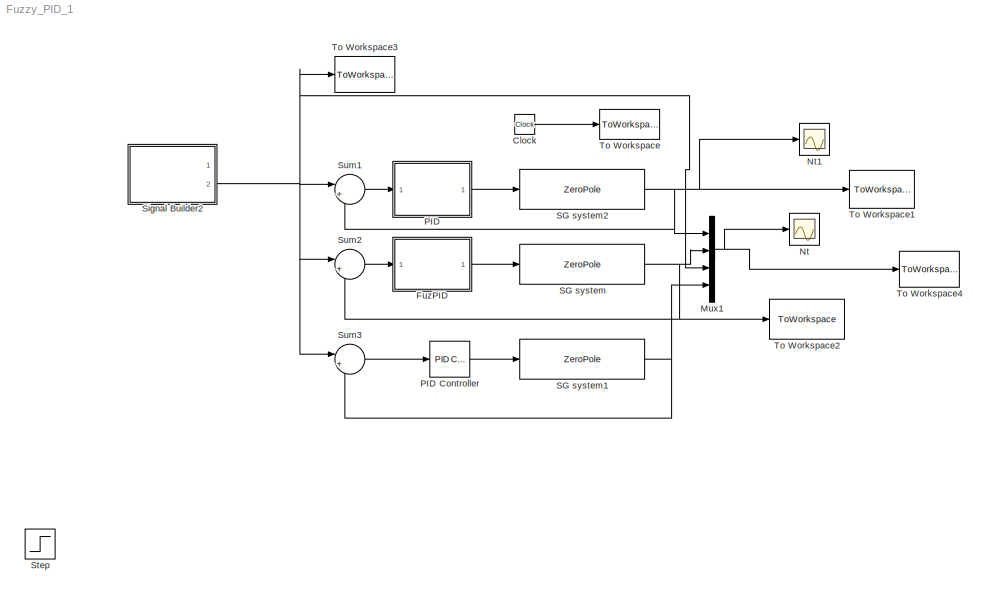
MODEL Fuzzy_PID_1
KIND model
BLOCK [Clock] Clock
  SID = 1
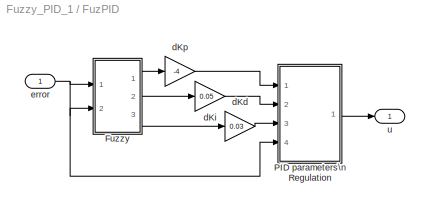
BLOCK [SubSystem] FuzPID
  Ports = [1, 1]
  RequestExecContextInheritance = off
  SID = 2
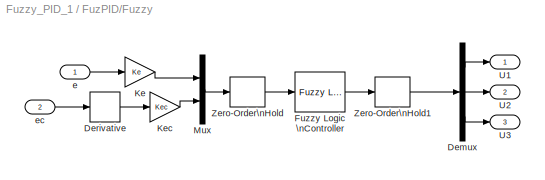
BLOCK [SubSystem] FuzPID/Fuzzy
  Ports = [2, 3]
  RequestExecContextInheritance = off
  SID = 4
BLOCK [Demux] FuzPID/Fuzzy/Demux
  DisplayOption = bar
  Outputs = 3
  Ports = [1, 3]
  SID = 7
BLOCK [Derivative] FuzPID/Fuzzy/Derivative
  SID = 8
BLOCK [Reference] FuzPID/Fuzzy/Fuzzy Logic \nController  REF=fuzblock/Fuzzy Logic \nController  (lib defined in mdl_858b3b3e7478)
  Ports = [1, 1]
  SID = 9
  SourceBlock = fuzblock/Fuzzy Logic \nController
  SourceType = FIS
  fis = fuzzyPID
BLOCK [Gain] FuzPID/Fuzzy/Ke
  Gain = Ke
  OutDataTypeStr = Inherit: Inherit via internal rule
  ParamDataTypeStr = Inherit: Inherit via internal rule
  SID = 10
  SaturateOnIntegerOverflow = off
BLOCK [Gain] FuzPID/Fuzzy/Kec
  Gain = Kec
  OutDataTypeStr = Inherit: Inherit via internal rule
  ParamDataTypeStr = Inherit: Inherit via internal rule
  SID = 11
  SaturateOnIntegerOverflow = off
BLOCK [Mux] FuzPID/Fuzzy/Mux
  DisplayOption = bar
  Inputs = 2
  Ports = [2, 1]
  SID = 12
BLOCK [Outport] FuzPID/Fuzzy/U1
  IconDisplay = Port number
  SID = 14
BLOCK [Outport] FuzPID/Fuzzy/U2
  IconDisplay = Port number
  Port = 2
  SID = 15
BLOCK [Outport] FuzPID/Fuzzy/U3
  IconDisplay = Port number
  Port = 3
  SID = 16
BLOCK [ZeroOrderHold] FuzPID/Fuzzy/Zero-Order\nHold
  SID = 13
  SampleTime = 0.005
BLOCK [ZeroOrderHold] FuzPID/Fuzzy/Zero-Order\nHold1
  SID = 70
  SampleTime = 0.005
BLOCK [Inport] FuzPID/Fuzzy/e
  IconDisplay = Port number
  SID = 5
BLOCK [Inport] FuzPID/Fuzzy/ec
  IconDisplay = Port number
  Port = 2
  SID = 6
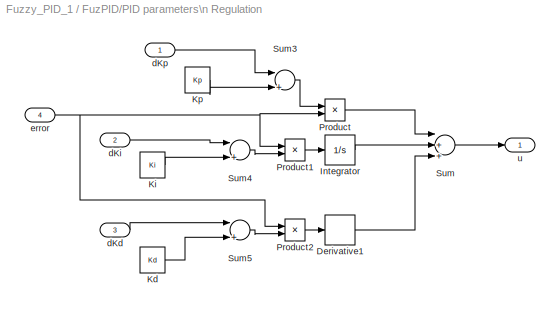
BLOCK [SubSystem] FuzPID/PID parameters\n Regulation
  Ports = [4, 1]
  RequestExecContextInheritance = off
  SID = 17
BLOCK [Derivative] FuzPID/PID parameters\n Regulation/Derivative1
  SID = 22
BLOCK [Integrator] FuzPID/PID parameters\n Regulation/Integrator
  Ports = [1, 1]
  SID = 23
BLOCK [Constant] FuzPID/PID parameters\n Regulation/Kd
  SID = 24
  Value = Kd
BLOCK [Constant] FuzPID/PID parameters\n Regulation/Ki
  SID = 25
  Value = Ki
BLOCK [Constant] FuzPID/PID parameters\n Regulation/Kp
  SID = 26
  Value = Kp
BLOCK [Product] FuzPID/PID parameters\n Regulation/Product
  InputSameDT = off
  OutDataTypeStr = Inherit: Inherit via internal rule
  Ports = [2, 1]
  SID = 27
  SaturateOnIntegerOverflow = off
BLOCK [Product] FuzPID/PID parameters\n Regulation/Product1
  InputSameDT = off
  OutDataTypeStr = Inherit: Inherit via internal rule
  Ports = [2, 1]
  SID = 28
  SaturateOnIntegerOverflow = off
BLOCK [Product] FuzPID/PID parameters\n Regulation/Product2
  InputSameDT = off
  OutDataTypeStr = Inherit: Inherit via internal rule
  Ports = [2, 1]
  SID = 29
  SaturateOnIntegerOverflow = off
BLOCK [Sum] FuzPID/PID parameters\n Regulation/Sum
  InputSameDT = off
  Inputs = |+++
  OutDataTypeStr = Inherit: Inherit via internal rule
  Ports = [3, 1]
  SID = 30
  SaturateOnIntegerOverflow = off
BLOCK [Sum] FuzPID/PID parameters\n Regulation/Sum3
  InputSameDT = off
  Inputs = |++
  OutDataTypeStr = Inherit: Inherit via internal rule
  Ports = [2, 1]
  SID = 31
  SaturateOnIntegerOverflow = off
BLOCK [Sum] FuzPID/PID parameters\n Regulation/Sum4
  InputSameDT = off
  Inputs = |++
  OutDataTypeStr = Inherit: Inherit via internal rule
  Ports = [2, 1]
  SID = 32
  SaturateOnIntegerOverflow = off
BLOCK [Sum] FuzPID/PID parameters\n Regulation/Sum5
  InputSameDT = off
  Inputs = |++
  OutDataTypeStr = Inherit: Inherit via internal rule
  Ports = [2, 1]
  SID = 33
  SaturateOnIntegerOverflow = off
BLOCK [Inport] FuzPID/PID parameters\n Regulation/dKd
  IconDisplay = Port number
  Port = 3
  SID = 20
BLOCK [Inport] FuzPID/PID parameters\n Regulation/dKi
  IconDisplay = Port number
  Port = 2
  SID = 19
BLOCK [Inport] FuzPID/PID parameters\n Regulation/dKp
  IconDisplay = Port number
  SID = 18
BLOCK [Inport] FuzPID/PID parameters\n Regulation/error
  IconDisplay = Port number
  Port = 4
  SID = 21
BLOCK [Outport] FuzPID/PID parameters\n Regulation/u
  IconDisplay = Port number
  SID = 34
BLOCK [Gain] FuzPID/dKd
  Gain = 0.03
  OutDataTypeStr = Inherit: Inherit via internal rule
  ParamDataTypeStr = Inherit: Inherit via internal rule
  SID = 35
  SaturateOnIntegerOverflow = off
BLOCK [Gain] FuzPID/dKi
  Gain = 0.05
  OutDataTypeStr = Inherit: Inherit via internal rule
  ParamDataTypeStr = Inherit: Inherit via internal rule
  SID = 36
  SaturateOnIntegerOverflow = off
BLOCK [Gain] FuzPID/dKp
  Gain = -4
  OutDataTypeStr = Inherit: Inherit via internal rule
  ParamDataTypeStr = Inherit: Inherit via internal rule
  SID = 37
  SaturateOnIntegerOverflow = off
BLOCK [Inport] FuzPID/error
  IconDisplay = Port number
  SID = 3
BLOCK [Outport] FuzPID/u
  IconDisplay = Port number
  SID = 38
BLOCK [Mux] Mux1
  DisplayOption = bar
  Ports = [4, 1]
  SID = 39
BLOCK [Scope] Nt
  DataFormat = StructureWithTime
  Floating = off
  LimitDataPoints = off
  NumInputPorts = 1
  Ports = [1]
  SID = 58
  SampleTime = 0
  ShowLegends = off
  TimeRange = 0.5
  YMax = 1.15
  YMin = 0.45
BLOCK [Scope] Nt1
  DataFormat = StructureWithTime
  Floating = off
  LimitDataPoints = off
  NumInputPorts = 1
  Ports = [1]
  SID = 60
  SampleTime = 0
  SaveName = ScopeData1
  ShowLegends = off
  TimeRange = 0.5
  YMax = 1.025
  YMin = 0.955
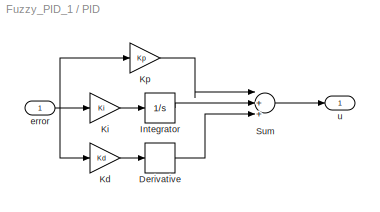
BLOCK [SubSystem] PID
  Ports = [1, 1]
  RequestExecContextInheritance = off
  SID = 40
BLOCK [Reference] PID Controller  REF=simulink/Continuous/PID Controller
  AntiWindupMode = none
  Controller = PID
  D = 0
  DOutDataTypeStr = Inherit: Inherit via internal rule
  DOutMax = []
  DOutMin = []
  DParamDataTypeStr = Inherit: Inherit via internal rule
  DParamMax = []
  DParamMin = []
  DifferentiatorICPrevScaledInput = 0
  DifferentiatorOutDataTypeStr = Inherit: Inherit via internal rule
  DifferentiatorOutMax = []
  DifferentiatorOutMin = []
  ExternalReset = none
  FilterContinuousStateAttributes = ''
  FilterMethod = Forward Euler
  FilterOutDataTypeStr = Inherit: Inherit via internal rule
  FilterOutMax = []
  FilterOutMin = []
  FilterRTWStateStorageClass = Auto
  FilterStateMustResolveToSignalObject = off
  Form = Parallel
  I = 3.45901912667025
  IOutDataTypeStr = Inherit: Inherit via internal rule
  IOutMax = []
  IOutMin = []
  IParamDataTypeStr = Inherit: Inherit via internal rule
  IParamMax = []
  IParamMin = []
  IgnoreLimit = off
  InitialConditionForFilter = 0
  InitialConditionForIntegrator = 0
  InitialConditionSource = internal
  IntegratorContinuousStateAttributes = ''
  IntegratorMethod = Forward Euler
  IntegratorOutDataTypeStr = Inherit: Inherit via internal rule
  IntegratorOutMax = []
  IntegratorOutMin = []
  IntegratorRTWStateStorageClass = Auto
  IntegratorStateMustResolveToSignalObject = off
  Kb = 1
  KbOutDataTypeStr = Inherit: Inherit via internal rule
  KbOutMax = []
  KbOutMin = []
  KbParamDataTypeStr = Inherit: Inherit via internal rule
  KbParamMax = []
  KbParamMin = []
  Kt = 1
  KtOutDataTypeStr = Inherit: Inherit via internal rule
  KtOutMax = []
  KtOutMin = []
  KtParamDataTypeStr = Inherit: Inherit via internal rule
  KtParamMax = []
  KtParamMin = []
  LimitOutput = off
  LinearizeAsGain = on
  LockScale = off
  LowerSaturationLimit = -inf
  N = 100
  NOutDataTypeStr = Inherit: Inherit via internal rule
  NOutMax = []
  NOutMin = []
  NParamDataTypeStr = Inherit: Inherit via internal rule
  NParamMax = []
  NParamMin = []
  P = 0.999855740158371
  POutDataTypeStr = Inherit: Inherit via internal rule
  POutMax = []
  POutMin = []
  PParamDataTypeStr = Inherit: Inherit via internal rule
  PParamMax = []
  PParamMin = []
  Ports = [1, 1]
  RndMeth = Floor
  SID = 72
  SampleTime = -1
  SaturateOnIntegerOverflow = off
  SaturationOutDataTypeStr = Inherit: Same as input
  SaturationOutMax = []
  SaturationOutMin = []
  SourceBlock = simulink/Continuous/PID Controller
  SourceType = PID 1dof
  SumAccumDataTypeStr = Inherit: Inherit via internal rule
  SumDAccumDataTypeStr = Inherit: Inherit via internal rule
  SumDOutDataTypeStr = Inherit: Inherit via internal rule
  SumDOutMax = []
  SumDOutMin = []
  SumI1AccumDataTypeStr = Inherit: Inherit via internal rule
  SumI1OutDataTypeStr = Inherit: Inherit via internal rule
  SumI1OutMax = []
  SumI1OutMin = []
  SumI2AccumDataTypeStr = Inherit: Inherit via internal rule
  SumI2OutDataTypeStr = Inherit: Inherit via internal rule
  SumI2OutMax = []
  SumI2OutMin = []
  SumI3AccumDataTypeStr = Inherit: Inherit via internal rule
  SumI3OutDataTypeStr = Inherit: Inherit via internal rule
  SumI3OutMax = []
  SumI3OutMin = []
  SumOutDataTypeStr = Inherit: Inherit via internal rule
  SumOutMax = []
  SumOutMin = []
  TimeDomain = Continuous-time
  TrackingMode = off
  UpperSaturationLimit = inf
  UseFilter = on
  ZeroCross = on
BLOCK [Derivative] PID/Derivative
  SID = 42
BLOCK [Integrator] PID/Integrator
  Ports = [1, 1]
  SID = 43
BLOCK [Gain] PID/Kd
  Gain = Kd
  OutDataTypeStr = Inherit: Inherit via internal rule
  ParamDataTypeStr = Inherit: Inherit via internal rule
  SID = 44
  SaturateOnIntegerOverflow = off
BLOCK [Gain] PID/Ki
  Gain = Ki
  OutDataTypeStr = Inherit: Inherit via internal rule
  ParamDataTypeStr = Inherit: Inherit via internal rule
  SID = 45
  SaturateOnIntegerOverflow = off
BLOCK [Gain] PID/Kp
  Gain = Kp
  OutDataTypeStr = Inherit: Inherit via internal rule
  ParamDataTypeStr = Inherit: Inherit via internal rule
  SID = 46
  SaturateOnIntegerOverflow = off
BLOCK [Sum] PID/Sum
  InputSameDT = off
  Inputs = |+++
  OutDataTypeStr = Inherit: Inherit via internal rule
  Ports = [3, 1]
  SID = 47
  SaturateOnIntegerOverflow = off
BLOCK [Inport] PID/error
  IconDisplay = Port number
  SID = 41
BLOCK [Outport] PID/u
  IconDisplay = Port number
  SID = 48
BLOCK [ZeroPole] SG system
  Gain = 792
  Poles = [-2.865 -40.235 ]
  SID = 49
  Zeros = []
BLOCK [ZeroPole] SG system1
  Gain = 792
  Poles = [-2.865 -40.235]
  SID = 82
  Zeros = []
BLOCK [ZeroPole] SG system2
  Gain = 792
  Poles = [-2.865 -40.235]
  SID = 50
  Zeros = []
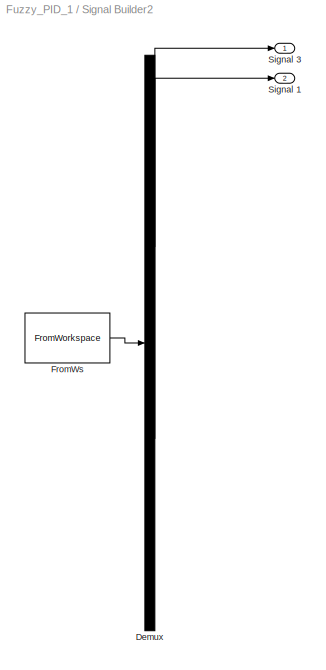
BLOCK [SubSystem] Signal Builder2
  ClipboardFcn = sigbuilder_block('clipboard');
  CloseFcn = sigbuilder_block('close');
  ContinueFcn = sigbuilder_block('continue')
  CopyFcn = sigbuilder_block('copy');
  DeleteFcn = sigbuilder_block('delete');
  LoadFcn = sigbuilder_block('load');
  MaskHideContents = on
  ModelCloseFcn = sigbuilder_block('modelClose');
  NameChangeFcn = sigbuilder_block('namechange');
  OpenFcn = sigbuilder_block('open',[-15.75 97.5 954 496.5 ]);
  PauseFcn = sigbuilder_block('pause')
  Ports = [0, 2]
  PreSaveFcn = sigbuilder_block('preSave');
  RequestExecContextInheritance = off
  SID = 71
  StartFcn = sigbuilder_block('start');
  StopFcn = sigbuilder_block('stop');
  Tag = STV Subsys
BLOCK [Demux] Signal Builder2/Demux
  Outputs = 2
  Ports = [1, 2]
  SID = 71:1
  Tag = STV Demux
BLOCK [FromWorkspace] Signal Builder2/FromWs
  SID = 71:2
  SampleTime = 0
  SigBuilderData = DataTag0
  Tag = STV FromWs
  VariableName = tuvar
  VnvData = DataTag1
  ZeroCross = on
BLOCK [Outport] Signal Builder2/Signal 1
  IconDisplay = Port number
  Port = 2
  SID = 71:4
  Tag = STV Outport
BLOCK [Outport] Signal Builder2/Signal 3
  IconDisplay = Port number
  SID = 71:3
  Tag = STV Outport
BLOCK [Step] Step
  SID = 69
  SampleTime = 0
  Time = 0
BLOCK [Sum] Sum1
  IconShape = round
  InputSameDT = off
  Inputs = |+-
  OutDataTypeStr = Inherit: Inherit via internal rule
  Ports = [2, 1]
  SID = 52
  SaturateOnIntegerOverflow = off
BLOCK [Sum] Sum2
  IconShape = round
  InputSameDT = off
  Inputs = |+-
  OutDataTypeStr = Inherit: Inherit via internal rule
  Ports = [2, 1]
  SID = 53
  SaturateOnIntegerOverflow = off
BLOCK [Sum] Sum3
  IconShape = round
  InputSameDT = off
  Inputs = |+-
  OutDataTypeStr = Inherit: Inherit via internal rule
  Ports = [2, 1]
  SID = 83
  SaturateOnIntegerOverflow = off
BLOCK [ToWorkspace] To Workspace
  MaxDataPoints = inf
  Ports = [1]
  SID = 54
  SampleTime = 0.0001
  VariableName = t
BLOCK [ToWorkspace] To Workspace1
  MaxDataPoints = inf
  Ports = [1]
  SID = 55
  SampleTime = 0.0001
  VariableName = Nt1
BLOCK [ToWorkspace] To Workspace2
  MaxDataPoints = inf
  Ports = [1]
  SID = 56
  SampleTime = 0.0001
  VariableName = Nt2
BLOCK [ToWorkspace] To Workspace3
  MaxDataPoints = inf
  Ports = [1]
  SID = 57
  SampleTime = 0.0001
  VariableName = Nref
BLOCK [ToWorkspace] To Workspace4
  MaxDataPoints = inf
  Ports = [1]
  SID = 67
  SampleTime = 0.0001
  VariableName = Nt
LINE Clock:1 -> To Workspace:1
LINE FuzPID/Fuzzy/Demux:1 -> FuzPID/Fuzzy/U1:1
LINE FuzPID/Fuzzy/Demux:2 -> FuzPID/Fuzzy/U2:1
LINE FuzPID/Fuzzy/Demux:3 -> FuzPID/Fuzzy/U3:1
LINE FuzPID/Fuzzy/Derivative:1 -> FuzPID/Fuzzy/Kec:1
LINE FuzPID/Fuzzy/Fuzzy Logic \nController:1 -> FuzPID/Fuzzy/Zero-Order\nHold1:1
LINE FuzPID/Fuzzy/Ke:1 -> FuzPID/Fuzzy/Mux:1
LINE FuzPID/Fuzzy/Kec:1 -> FuzPID/Fuzzy/Mux:2
LINE FuzPID/Fuzzy/Mux:1 -> FuzPID/Fuzzy/Zero-Order\nHold:1
LINE FuzPID/Fuzzy/Zero-Order\nHold1:1 -> FuzPID/Fuzzy/Demux:1
LINE FuzPID/Fuzzy/Zero-Order\nHold:1 -> FuzPID/Fuzzy/Fuzzy Logic \nController:1
LINE FuzPID/Fuzzy/e:1 -> FuzPID/Fuzzy/Ke:1
LINE FuzPID/Fuzzy/ec:1 -> FuzPID/Fuzzy/Derivative:1
LINE FuzPID/Fuzzy:1 -> FuzPID/dKp:1
LINE FuzPID/Fuzzy:2 -> FuzPID/dKi:1
LINE FuzPID/Fuzzy:3 -> FuzPID/dKd:1
LINE FuzPID/PID parameters\n Regulation/Derivative1:1 -> FuzPID/PID parameters\n Regulation/Sum:3
LINE FuzPID/PID parameters\n Regulation/Integrator:1 -> FuzPID/PID parameters\n Regulation/Sum:2
LINE FuzPID/PID parameters\n Regulation/Kd:1 -> FuzPID/PID parameters\n Regulation/Sum5:2
LINE FuzPID/PID parameters\n Regulation/Ki:1 -> FuzPID/PID parameters\n Regulation/Sum4:2
LINE FuzPID/PID parameters\n Regulation/Kp:1 -> FuzPID/PID parameters\n Regulation/Sum3:2
LINE FuzPID/PID parameters\n Regulation/Product1:1 -> FuzPID/PID parameters\n Regulation/Integrator:1
LINE FuzPID/PID parameters\n Regulation/Product2:1 -> FuzPID/PID parameters\n Regulation/Derivative1:1
LINE FuzPID/PID parameters\n Regulation/Product:1 -> FuzPID/PID parameters\n Regulation/Sum:1
LINE FuzPID/PID parameters\n Regulation/Sum3:1 -> FuzPID/PID parameters\n Regulation/Product:1
LINE FuzPID/PID parameters\n Regulation/Sum4:1 -> FuzPID/PID parameters\n Regulation/Product1:2
LINE FuzPID/PID parameters\n Regulation/Sum5:1 -> FuzPID/PID parameters\n Regulation/Product2:2
LINE FuzPID/PID parameters\n Regulation/Sum:1 -> FuzPID/PID parameters\n Regulation/u:1
LINE FuzPID/PID parameters\n Regulation/dKd:1 -> FuzPID/PID parameters\n Regulation/Sum5:1
LINE FuzPID/PID parameters\n Regulation/dKi:1 -> FuzPID/PID parameters\n Regulation/Sum4:1
LINE FuzPID/PID parameters\n Regulation/dKp:1 -> FuzPID/PID parameters\n Regulation/Sum3:1
NET FuzPID/PID parameters\n Regulation/error:1 -> FuzPID/PID parameters\n Regulation/Product1:1, FuzPID/PID parameters\n Regulation/Product2:1, FuzPID/PID parameters\n Regulation/Product:2
LINE FuzPID/PID parameters\n Regulation:1 -> FuzPID/u:1
LINE FuzPID/dKd:1 -> FuzPID/PID parameters\n Regulation:3
LINE FuzPID/dKi:1 -> FuzPID/PID parameters\n Regulation:2
LINE FuzPID/dKp:1 -> FuzPID/PID parameters\n Regulation:1
NET FuzPID/error:1 -> FuzPID/Fuzzy:1, FuzPID/Fuzzy:2, FuzPID/PID parameters\n Regulation:4
LINE FuzPID:1 -> SG system:1
NET Mux1:1 -> Nt:1, To Workspace4:1
LINE PID Controller:1 -> SG system1:1
LINE PID/Derivative:1 -> PID/Sum:3
LINE PID/Integrator:1 -> PID/Sum:2
LINE PID/Kd:1 -> PID/Derivative:1
LINE PID/Ki:1 -> PID/Integrator:1
LINE PID/Kp:1 -> PID/Sum:1
LINE PID/Sum:1 -> PID/u:1
NET PID/error:1 -> PID/Kd:1, PID/Ki:1, PID/Kp:1
LINE PID:1 -> SG system2:1
NET SG system1:1 -> Mux1:4, Sum3:2
NET SG system2:1 -> Mux1:1, Nt1:1, Sum1:2, To Workspace1:1
NET SG system:1 -> Mux1:2, Sum2:2, To Workspace2:1
LINE Signal Builder2/Demux:1 -> Signal Builder2/Signal 3:1
LINE Signal Builder2/Demux:2 -> Signal Builder2/Signal 1:1
LINE Signal Builder2/FromWs:1 -> Signal Builder2/Demux:1
NET Signal Builder2:2 -> Mux1:3, Sum1:1, Sum2:1, Sum3:1, To Workspace3:1
LINE Sum1:1 -> PID:1
LINE Sum2:1 -> FuzPID:1
LINE Sum3:1 -> PID Controller:1
note: NET lines group one-source signal fan-out (src -> all destinations, sorted); 1:1 wires keep LINE
